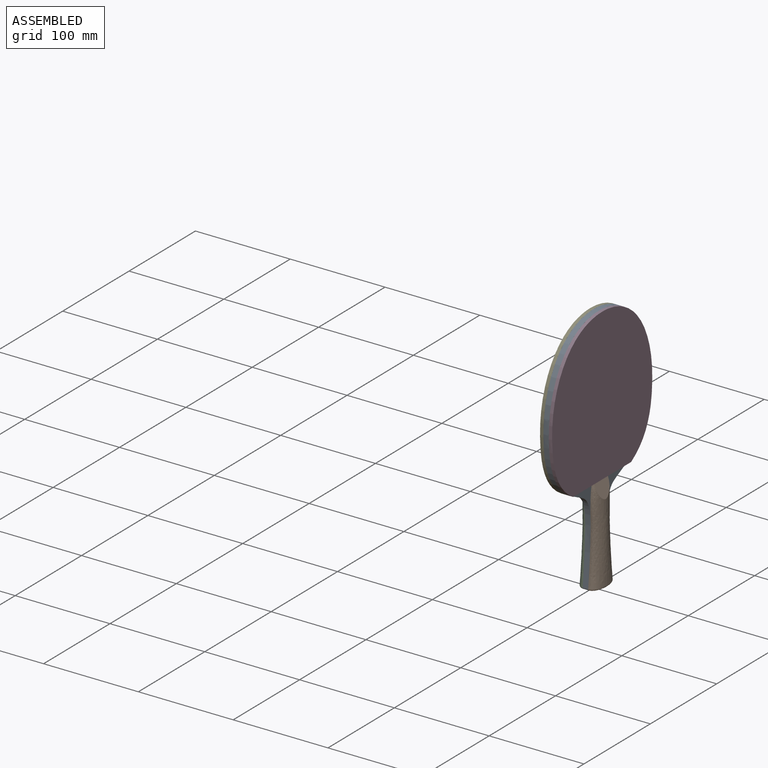
[diagram: assembled view]
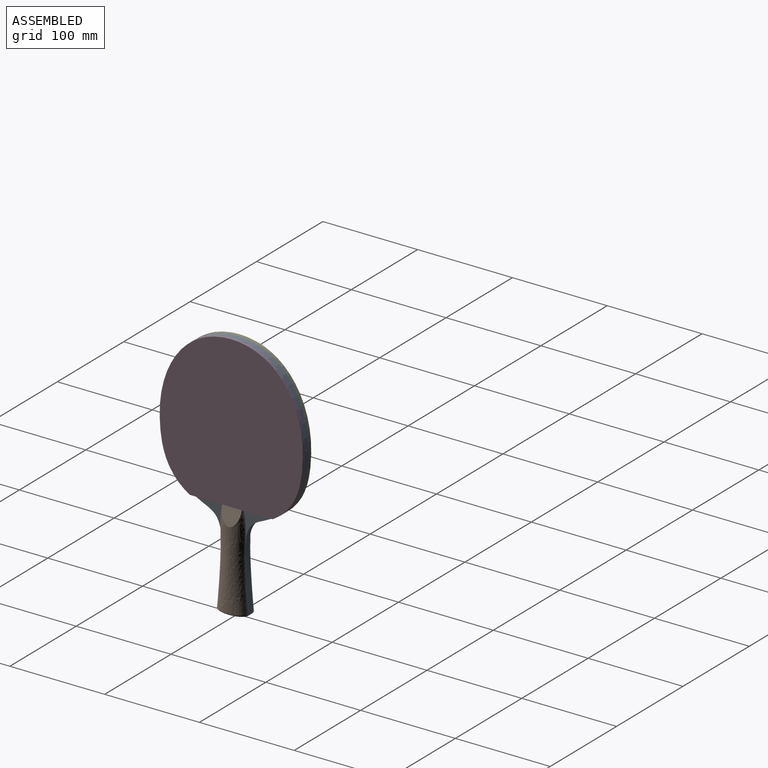
[diagram: assembled view, second angle]
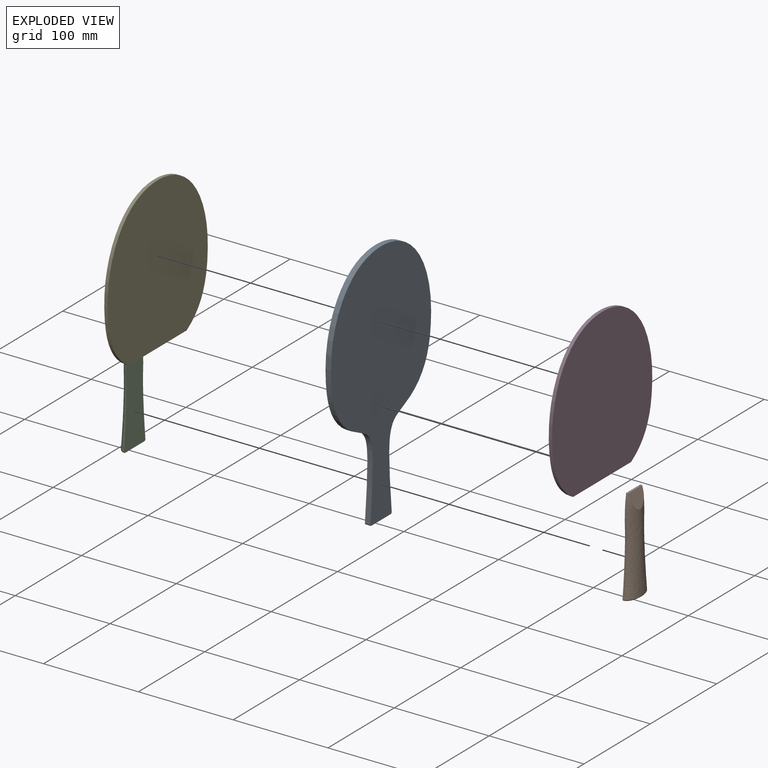
[diagram: exploded view]
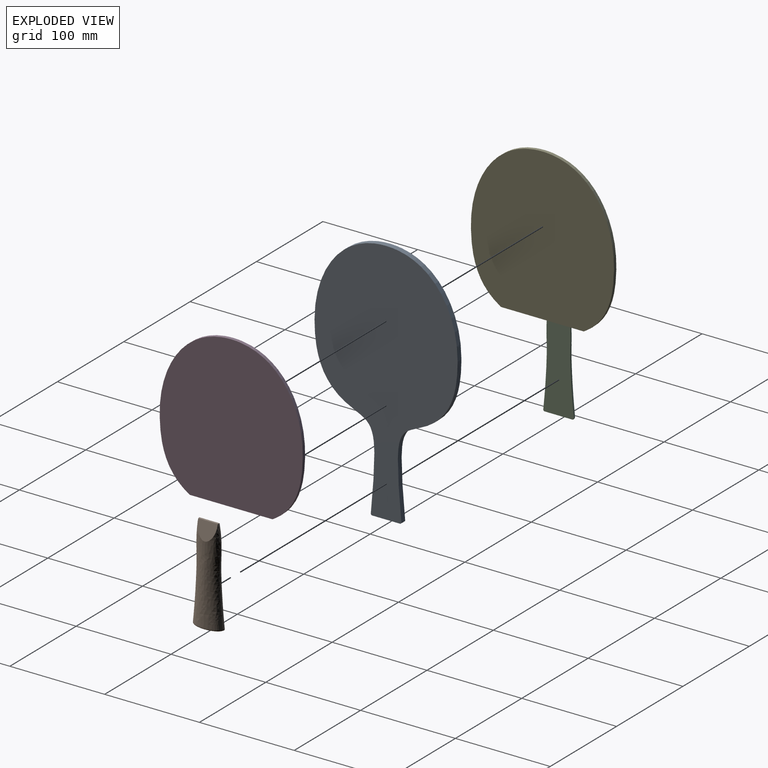
[diagram: exploded view, second angle]
ASSEMBLY  parts=5 mates=4
PART A: 9 faces, bbox 151.8x5.7x261 mm
  f0: extruded ~159.94x75.47mm, area 1209.8mm2, adj f1,f3,f4,f6
  f1: extruded ~99.38x31.3mm, area 658.5mm2, adj f0,f3,f4,f5
  f2: plane 29.24x5.7mm, normal (0,0,-1), area 166.7mm2, adj f3,f4,f5,f8
  f3: plane 260.98x151.8mm, normal (0,1,0), area 23565.2mm2, adj f0,f1,f2,f5,f6,f7,f8
  f4: plane 260.98x151.8mm, normal (0,-1,0), area 23565.2mm2, adj f0,f1,f2,f5,f6,f7,f8
  f5: cylinder r=1.5mm len=5.7mm, axis (0,-1,0), area 14.4mm2, adj f1,f2,f3,f4
  f6: extruded ~159.94x75.47mm, area 1209.8mm2, adj f0,f3,f4,f7
  f7: extruded ~99.38x31.3mm, area 658.5mm2, adj f3,f4,f6,f8
  f8: cylinder r=1.5mm len=5.7mm, axis (0,-1,0), area 14.4mm2, adj f2,f3,f4,f7
PART B: 7 faces, bbox 32.7x9.1x101.1 mm
  f0: plane 101.1x32.31mm, normal (0,1,0), area 2672.7mm2, adj f1,f2,f3,f5,f6
  f1: bspline ~101.04x32.6mm, area 3049.4mm2, adj f0,f2,f4,f5,f6
  f2: plane 21.38x2.15mm, normal (0,0,1), area 45.5mm2, adj f0,f1,f4
  f3: plane 29.24x7.33mm, normal (0,0,-1), area 170.4mm2, adj f0,f5,f6
  f4: plane 20.8x17.57mm, normal (0,-0.96,0.28), area 302.4mm2, adj f1,f2
  f5: bspline ~18.14x8.98mm, area 47.2mm2, adj f0,f1,f3,f6
  f6: bspline ~18.14x8.98mm, area 47.2mm2, adj f0,f1,f3,f5
PART C: same geometry as B
PART D: 5 faces, bbox 151.8x3.5x159.9 mm
  f0: extruded ~159.94x75.47mm, area 742.9mm2, adj f1,f2,f3,f4
  f1: plane 87.38x3.5mm, normal (0,0,-1), area 305.8mm2, adj f0,f2,f3,f4
  f2: plane 159.94x151.8mm, normal (0,-1,0), area 20305.9mm2, adj f0,f1,f4
  f3: plane 159.94x151.8mm, normal (0,1,0), area 20305.9mm2, adj f0,f1,f4
  f4: extruded ~159.94x75.47mm, area 742.9mm2, adj f0,f1,f2,f3
PART E: same geometry as D
PLACE A rot(axis=(0,0,1),90deg) t=(2.85,0,14.18)mm
PLACE B rot(axis=(0,0,1),90deg) t=(5.7,0,14.18)mm
PLACE C rot(axis=(0,0,-1),90deg) t=(0,0,14.18)mm
PLACE D rot(axis=(0,0,1),90deg) t=(5.7,0,14.18)mm
PLACE E rot(axis=(0,0,1),90deg) t=(-3.5,0,14.18)mm
MATE fastened D.f3 <-> A.f4  axis (-1,0,0) through (5.7,0,260.98)mm
MATE fastened E.f2 <-> A.f3  axis (1,0,0) through (0,0,260.98)mm
MATE fastened C.f0 <-> A.f3  axis (1,0,0) through (0,14.62,0)mm
MATE fastened B.f0 <-> A.f4  axis (-1,0,0) through (5.7,14.62,0)mm
